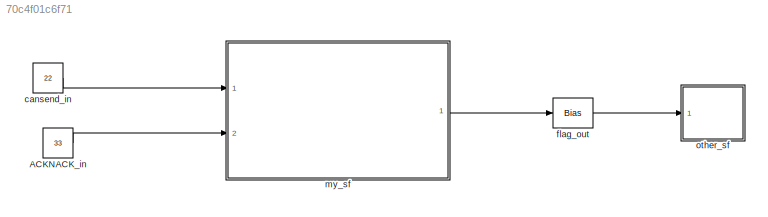
MODEL slx_70c4f01c6f71
KIND model
CONFIG AbsTol = auto
CONFIG EnableMultiTasking = off
CONFIG FixedStep = auto
CONFIG MaxStep = auto
CONFIG MinStep = auto
CONFIG RelTol = 1e-3
CONFIG SampleTimeConstraint = Unconstrained
CONFIG Solver = VariableStepAuto
CONFIG SolverName = VariableStepAuto
CONFIG StartTime = 0.0
CONFIG StopTime = 10.0
BLOCK [Constant] ACKNACK_in
  Value = 33
BLOCK [Constant] cansend_in
  Value = 22
BLOCK [Bias] flag_out
  Bias = 44
  SaturateOnIntegerOverflow = off
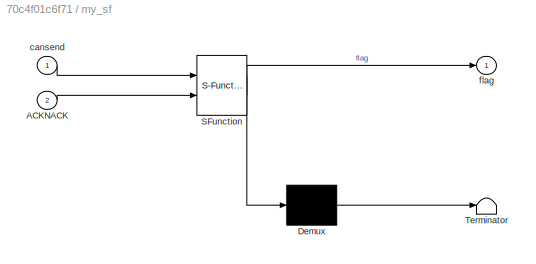
BLOCK [SubSystem] my_sf
  ErrorFcn = Stateflow.Translate.translate
  PermitHierarchicalResolution = ExplicitOnly
  Ports = [2, 1]
  RequestExecContextInheritance = off
  SFBlockType = Chart
  TreatAsAtomicUnit = on
BLOCK [Demux] my_sf/ Demux 
  Outputs = 1
  Ports = [1, 1]
BLOCK [S-Function] my_sf/ SFunction 
  EnableBusSupport = on
  FunctionName = sf_sfun
  PortCounts = [2 2]
  Ports = [2, 2]
  SFcnIsStateOwnerBlock = off
  SFunctionDeploymentMode = off
  Tag = Stateflow S-Function sf_example 3
BLOCK [Terminator] my_sf/ Terminator 
BLOCK [Inport] my_sf/ACKNACK
  IconDisplay = Port number
  Port = 2
BLOCK [Inport] my_sf/cansend
  IconDisplay = Port number
BLOCK [Outport] my_sf/flag
  IconDisplay = Port number
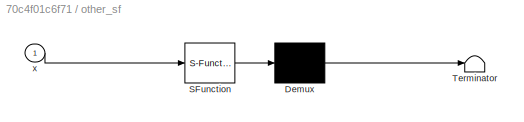
BLOCK [SubSystem] other_sf
  ErrorFcn = Stateflow.Translate.translate
  PermitHierarchicalResolution = ExplicitOnly
  Ports = [1]
  RequestExecContextInheritance = off
  SFBlockType = Chart
  TreatAsAtomicUnit = on
BLOCK [Demux] other_sf/ Demux 
  Outputs = 1
  Ports = [1, 1]
BLOCK [S-Function] other_sf/ SFunction 
  EnableBusSupport = off
  FunctionName = sf_sfun
  PortCounts = [1 1]
  Ports = [1, 1]
  SFcnIsStateOwnerBlock = off
  SFunctionDeploymentMode = off
  Tag = Stateflow S-Function sf_example 1
BLOCK [Terminator] other_sf/ Terminator 
BLOCK [Inport] other_sf/x
  IconDisplay = Port number
LINE ACKNACK_in:1 -> my_sf:2
LINE cansend_in:1 -> my_sf:1
LINE flag_out:1 -> other_sf:1
LINE my_sf:1 -> flag_out:1
CHART other_sf states=7 transitions=8
  STATE_LABEL 'On\nen: x = 1\ndu: x = 2\nex: x = 3'
  STATE_LABEL 'Mid\nen: x = 4\ndu: x = 5\nex: x = 6'
  STATE_LABEL 'In\nen: x = 7\ndu: x = 8\nex: x = 9'
  STATE_LABEL 'Mid\nen: x = 4\ndu: x = 5\nex: x = 6'
  STATE_LABEL 'In\nen: x = 7\ndu: x = 8\nex: x = 9'
  STATE_LABEL 'In\nen: x = 7\ndu: x = 8\nex: x = 9'
  STATE_LABEL 'Off\nen: x = 12\ndu: x = 13\nex: x = 14'
  STATE_LABEL 'In\nen: x = 16\ndu: x = 17\nex: x = 18'
  STATE_LABEL 'AND0'
  STATE_LABEL 'AND1'
  STATE_LABEL 'In\nen: x = 16\ndu: x = 17\nex: x = 18'
  STATE_LABEL 'AND0'
  STATE_LABEL 'AND1'
  STATE_LABEL 'AND0'
  STATE_LABEL 'AND1'
CHART my_sf states=3 transitions=7
  STATE_LABEL 'repairing\nduring:flag=0'
  STATE_LABEL 'must_repair\nduring:flag=1;'
  STATE_LABEL 'waiting\nduring:flag=1;'
